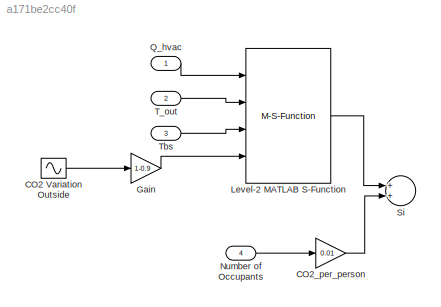
MODEL slx_a171be2cc40f
KIND model
CONFIG AbsTol = auto
CONFIG EnableMultiTasking = off
CONFIG FixedStep = auto
CONFIG MaxStep = auto
CONFIG MinStep = auto
CONFIG RelTol = 1e-3
CONFIG SampleTimeConstraint = Unconstrained
CONFIG Solver = VariableStepAuto
CONFIG SolverName = VariableStepAuto
CONFIG StartTime = 0.0
CONFIG StopTime = 10.0
BLOCK [Sin] CO2 Variation Outside
  Amplitude = 500
  Bias = 400
  Frequency = 2*pi/(12*3600)
  Ports = [0, 1]
  SampleTime = 0
BLOCK [Gain] CO2_per_person
  Gain = 0.01
  OutDataTypeStr = Inherit: Inherit via internal rule
  ParamDataTypeStr = Inherit: Inherit via internal rule
  SaturateOnIntegerOverflow = off
BLOCK [Gain] Gain
  Gain = 1-0.9
  OutDataTypeStr = Inherit: Inherit via internal rule
  ParamDataTypeStr = Inherit: Inherit via internal rule
  SaturateOnIntegerOverflow = off
BLOCK [M-S-Function] Level-2 MATLAB S-Function
  FunctionName = Q_hvac_2_m3
  Ports = [4, 1]
BLOCK [Inport] Number of Occupants
  IconDisplay = Port number
  Port = 4
BLOCK [Inport] Q_hvac
  IconDisplay = Port number
BLOCK [Sum] Si
  InputSameDT = off
  OutDataTypeStr = Inherit: Inherit via internal rule
  Ports = [2, 1]
  SaturateOnIntegerOverflow = off
BLOCK [Inport] T_out
  IconDisplay = Port number
  Port = 2
BLOCK [Inport] Tbs
  IconDisplay = Port number
  Port = 3
LINE CO2 Variation Outside:1 -> Gain:1
LINE CO2_per_person:1 -> Si:2
LINE Gain:1 -> Level-2 MATLAB S-Function:4
LINE Level-2 MATLAB S-Function:1 -> Si:1
LINE Number of Occupants:1 -> CO2_per_person:1
LINE Q_hvac:1 -> Level-2 MATLAB S-Function:1
LINE T_out:1 -> Level-2 MATLAB S-Function:2
LINE Tbs:1 -> Level-2 MATLAB S-Function:3
